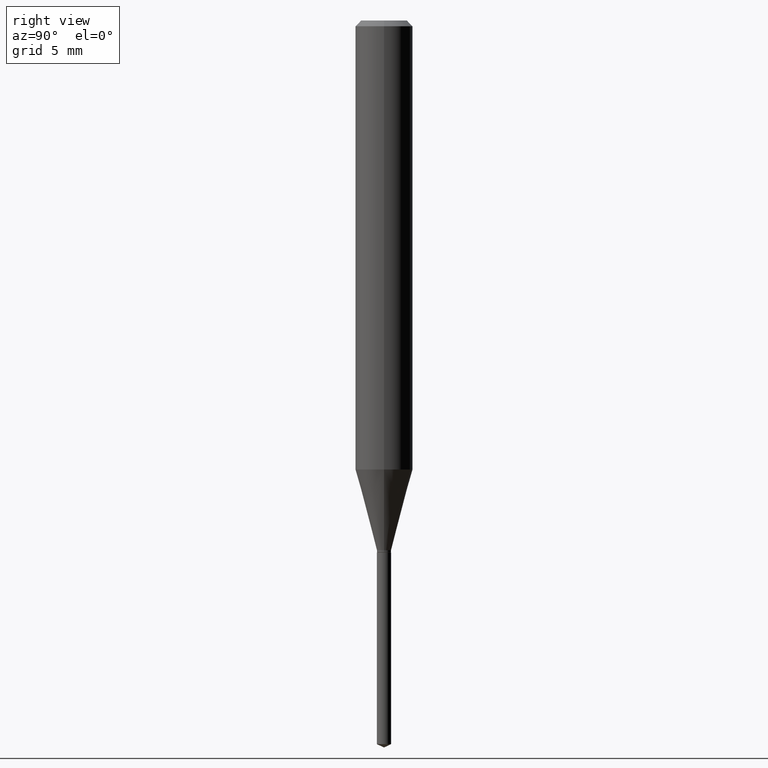
[diagram: clean part render]
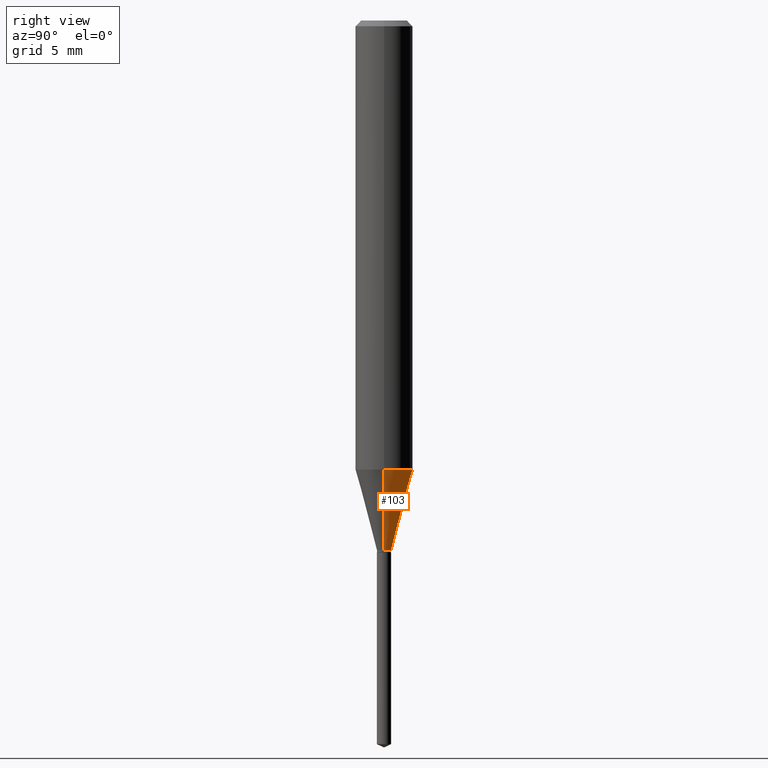
[diagram: same view with one face highlighted and labeled with its STEP entity id]
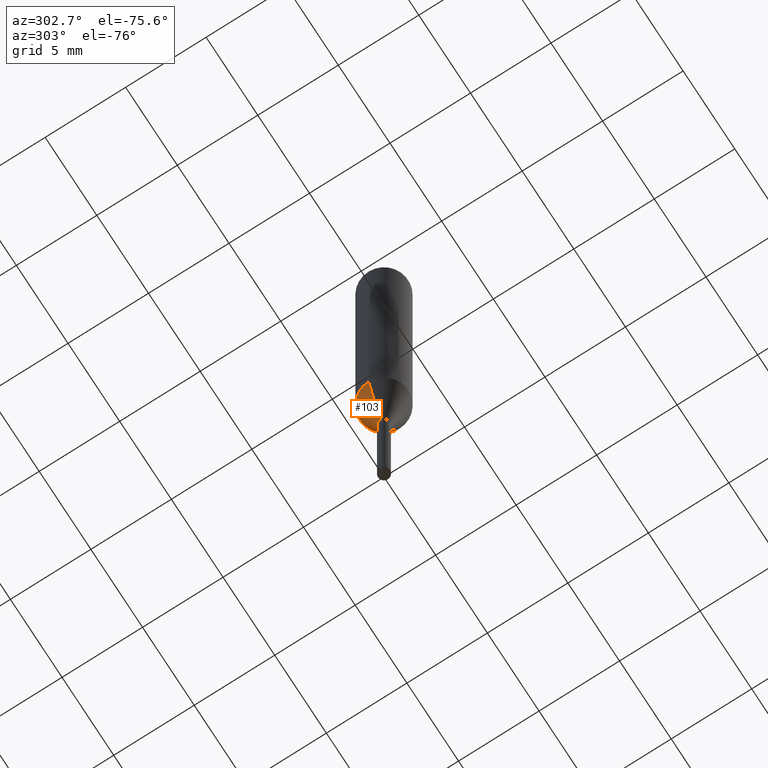
[diagram: same view with one face highlighted and labeled with its STEP entity id]
A machine part, right view. The second image highlights one B-rep face of the part: STEP entity #103.
A second angle (auxiliary view) of the same face is appended — the face is thin or edge-on in the first view.
In plain terms, the highlighted conical surface has half-angle 15 deg.
Its self-contained STEP definition (entity closure, byte-faithful):
#6 = VERTEX_POINT ( 'NONE', #464 ) ;
#7 = EDGE_CURVE ( 'NONE', #430, #453, #425, .T. ) ;
#42 = ORIENTED_EDGE ( 'NONE', *, *, #376, .T. ) ;
#71 = ORIENTED_EDGE ( 'NONE', *, *, #282, .F. ) ;
#90 = AXIS2_PLACEMENT_3D ( 'NONE', #210, #485, #299 ) ;
#103 = ADVANCED_FACE ( 'NONE', ( #227 ), #127, .T. ) ;
#109 = VECTOR ( 'NONE', #416, 39.37007874015748854 ) ;
#113 = CARTESIAN_POINT ( 'NONE',  ( -0.05905000000000010241, -2.806636156120838510E-15, -0.9240237390631849124 ) ) ;
#127 = CONICAL_SURFACE ( 'NONE', #427, 0.01455000000000000043, 0.2617993877991499629 ) ;
#146 = ORIENTED_EDGE ( 'NONE', *, *, #226, .F. ) ;
#148 = AXIS2_PLACEMENT_3D ( 'NONE', #351, #234, #391 ) ;
#163 = DIRECTION ( 'NONE',  ( 1.000000000000000000, -6.982962677686255667E-15, 0.000000000000000000 ) ) ;
#170 = DIRECTION ( 'NONE',  ( 0.2588190451025212391, 1.565188264969622362E-15, 0.9659258262890679791 ) ) ;
#210 = CARTESIAN_POINT ( 'NONE',  ( 2.259671230053572766E-29, -3.226211641587178003E-15, -0.9240237390631849124 ) ) ;
#213 = CARTESIAN_POINT ( 'NONE',  ( -0.01455000000000000043, -3.702679839419818518E-15, -1.090099999999999847 ) ) ;
#222 = VECTOR ( 'NONE', #170, 39.37007874015748854 ) ;
#226 = EDGE_CURVE ( 'NONE', #305, #6, #377, .T. ) ;
#227 = FACE_OUTER_BOUND ( 'NONE', #267, .T. ) ;
#234 = DIRECTION ( 'NONE',  ( -2.445468806185136597E-29, 3.491481338843145583E-15, 1.000000000000000000 ) ) ;
#236 = CARTESIAN_POINT ( 'NONE',  ( 2.665805545622417047E-29, -3.806063807472912753E-15, -1.090099999999999847 ) ) ;
#238 = CIRCLE ( 'NONE', #90, 0.05905000000000010241 ) ;
#267 = EDGE_LOOP ( 'NONE', ( #42, #348, #71, #146 ) ) ;
#282 = EDGE_CURVE ( 'NONE', #6, #453, #238, .T. ) ;
#299 = DIRECTION ( 'NONE',  ( 1.000000000000000000, -6.982962677686268288E-15, 0.000000000000000000 ) ) ;
#305 = VERTEX_POINT ( 'NONE', #317 ) ;
#317 = CARTESIAN_POINT ( 'NONE',  ( 0.01455000000000000043, -3.907665914433247416E-15, -1.090099999999999847 ) ) ;
#329 = DIRECTION ( 'NONE',  ( -2.445468806185136597E-29, 3.491481338843145583E-15, 1.000000000000000000 ) ) ;
#336 = CARTESIAN_POINT ( 'NONE',  ( -0.01455000000000000043, -3.709488228030561988E-15, -1.090099999999999847 ) ) ;
#348 = ORIENTED_EDGE ( 'NONE', *, *, #7, .T. ) ;
#351 = CARTESIAN_POINT ( 'NONE',  ( 2.665805545622417047E-29, -3.806063807472912753E-15, -1.090099999999999847 ) ) ;
#376 = EDGE_CURVE ( 'NONE', #305, #430, #387, .T. ) ;
#377 = LINE ( 'NONE', #474, #222 ) ;
#387 = CIRCLE ( 'NONE', #148, 0.01455000000000000043 ) ;
#391 = DIRECTION ( 'NONE',  ( 1.000000000000000000, -6.982962677686255667E-15, 0.000000000000000000 ) ) ;
#416 = DIRECTION ( 'NONE',  ( -0.2588190451025212391, 5.211531920934549464E-15, 0.9659258262890679791 ) ) ;
#425 = LINE ( 'NONE', #213, #109 ) ;
#427 = AXIS2_PLACEMENT_3D ( 'NONE', #236, #329, #163 ) ;
#430 = VERTEX_POINT ( 'NONE', #336 ) ;
#453 = VERTEX_POINT ( 'NONE', #113 ) ;
#464 = CARTESIAN_POINT ( 'NONE',  ( 0.05905000000000010241, -3.638555587704553318E-15, -0.9240237390631849124 ) ) ;
#474 = CARTESIAN_POINT ( 'NONE',  ( 0.01455000000000000043, -3.907665914433247416E-15, -1.090099999999999847 ) ) ;
#485 = DIRECTION ( 'NONE',  ( -2.445468806185136597E-29, 3.491481338843145583E-15, 1.000000000000000000 ) ) ;